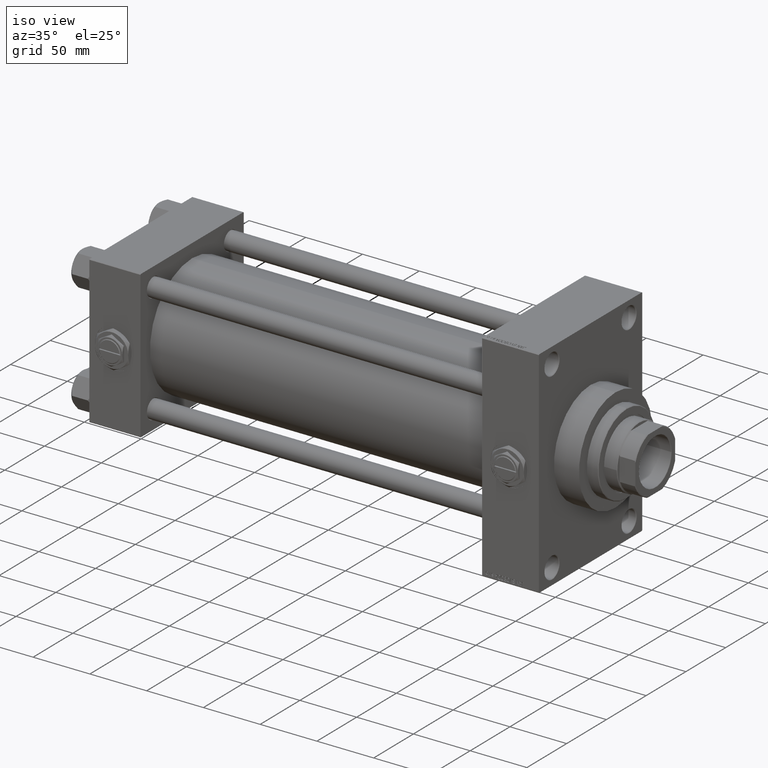
[diagram: clean part render]
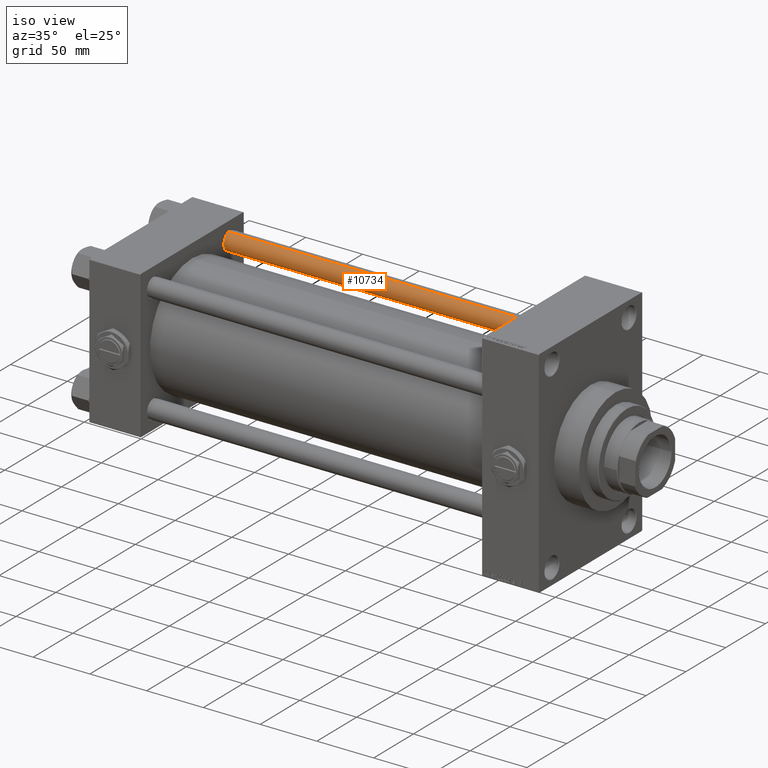
[diagram: same view with one face highlighted and labeled with its STEP entity id]
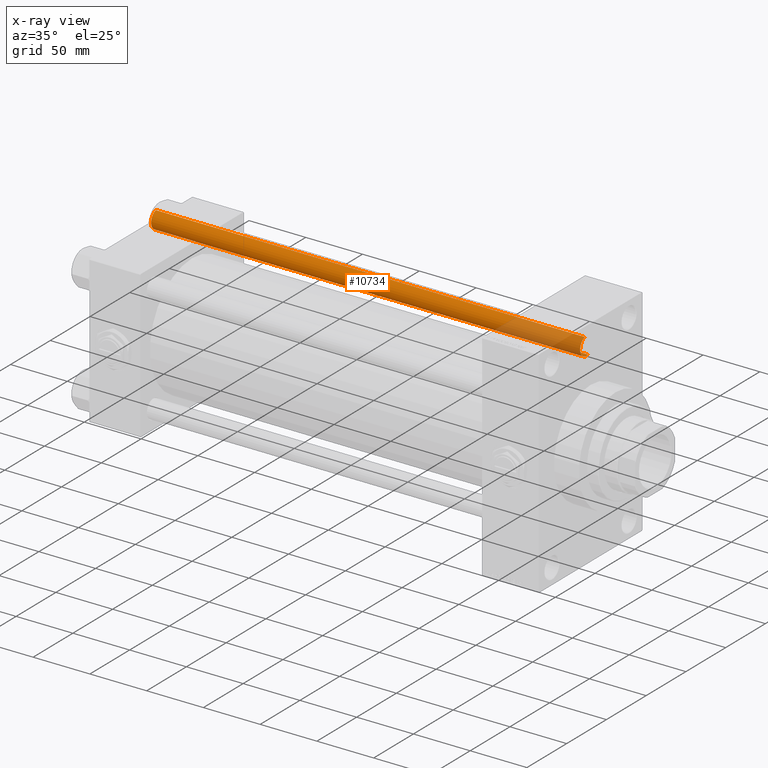
[diagram: x-ray of the same camera — body ghosted, the highlighted face saturated]
A machine part, iso view. The second image highlights one B-rep face of the part: STEP entity #10734.
The next image is the same camera in x-ray: the body ghosted, the highlighted face saturated — about 18% of this face is hidden behind the body in this view.
In plain terms, the highlighted cylindrical surface (edge-blend (fillet) strip) has radius 8 mm, axis along (-1, -0, 0).
Its self-contained STEP definition (entity closure, byte-faithful):
#559 = AXIS2_PLACEMENT_3D ( 'NONE', #12253, #12759, #8466 ) ;
#901 = FACE_OUTER_BOUND ( 'NONE', #17137, .T. ) ;
#3268 = VERTEX_POINT ( 'NONE', #49325 ) ;
#3337 = ORIENTED_EDGE ( 'NONE', *, *, #7220, .F. ) ;
#5632 = CARTESIAN_POINT ( 'NONE',  ( 8.000000000000000000, 9.797174393178825657E-16, 378.4999999999999432 ) ) ;
#6124 = AXIS2_PLACEMENT_3D ( 'NONE', #29737, #8271, #22674 ) ;
#7220 = EDGE_CURVE ( 'NONE', #16552, #27968, #7303, .T. ) ;
#7303 = LINE ( 'NONE', #19163, #33585 ) ;
#8271 = DIRECTION ( 'NONE',  ( 0.000000000000000000, 0.000000000000000000, -1.000000000000000000 ) ) ;
#8466 = DIRECTION ( 'NONE',  ( -1.000000000000000000, 0.000000000000000000, 0.000000000000000000 ) ) ;
#10570 = VERTEX_POINT ( 'NONE', #45822 ) ;
#10734 = ADVANCED_FACE ( 'NONE', ( #901 ), #16548, .T. ) ;
#11189 = ORIENTED_EDGE ( 'NONE', *, *, #49035, .T. ) ;
#12253 = CARTESIAN_POINT ( 'NONE',  ( 0.000000000000000000, 0.000000000000000000, 379.0000000000000000 ) ) ;
#12518 = ORIENTED_EDGE ( 'NONE', *, *, #43814, .T. ) ;
#12759 = DIRECTION ( 'NONE',  ( -0.000000000000000000, -0.000000000000000000, -1.000000000000000000 ) ) ;
#13435 = CIRCLE ( 'NONE', #47232, 8.000000000000000000 ) ;
#13964 = LINE ( 'NONE', #48510, #14945 ) ;
#14945 = VECTOR ( 'NONE', #29336, 1000.000000000000000 ) ;
#15767 = CIRCLE ( 'NONE', #6124, 8.000000000000000000 ) ;
#16548 = CYLINDRICAL_SURFACE ( 'NONE', #559, 8.000000000000000000 ) ;
#16552 = VERTEX_POINT ( 'NONE', #5632 ) ;
#17137 = EDGE_LOOP ( 'NONE', ( #3337, #12518, #31095, #11189 ) ) ;
#19163 = CARTESIAN_POINT ( 'NONE',  ( 8.000000000000000000, 9.797174393178825657E-16, 379.0000000000000000 ) ) ;
#22674 = DIRECTION ( 'NONE',  ( 1.000000000000000000, 0.000000000000000000, 0.000000000000000000 ) ) ;
#27968 = VERTEX_POINT ( 'NONE', #41893 ) ;
#29336 = DIRECTION ( 'NONE',  ( -0.000000000000000000, -0.000000000000000000, -1.000000000000000000 ) ) ;
#29737 = CARTESIAN_POINT ( 'NONE',  ( 0.000000000000000000, 0.000000000000000000, 378.4999999999999432 ) ) ;
#30500 = DIRECTION ( 'NONE',  ( -0.000000000000000000, -0.000000000000000000, -1.000000000000000000 ) ) ;
#31095 = ORIENTED_EDGE ( 'NONE', *, *, #42602, .T. ) ;
#33585 = VECTOR ( 'NONE', #30500, 1000.000000000000000 ) ;
#35341 = CARTESIAN_POINT ( 'NONE',  ( 0.000000000000000000, 0.000000000000000000, 0.4999999999998894218 ) ) ;
#41893 = CARTESIAN_POINT ( 'NONE',  ( 8.000000000000000000, 9.797174393178825657E-16, 0.4999999999998894218 ) ) ;
#42602 = EDGE_CURVE ( 'NONE', #10570, #3268, #13964, .T. ) ;
#42911 = DIRECTION ( 'NONE',  ( 1.000000000000000000, 0.000000000000000000, 0.000000000000000000 ) ) ;
#43814 = EDGE_CURVE ( 'NONE', #16552, #10570, #15767, .T. ) ;
#45822 = CARTESIAN_POINT ( 'NONE',  ( -8.000000000000000000, 0.000000000000000000, 378.4999999999999432 ) ) ;
#46686 = DIRECTION ( 'NONE',  ( -0.000000000000000000, -0.000000000000000000, 1.000000000000000000 ) ) ;
#47232 = AXIS2_PLACEMENT_3D ( 'NONE', #35341, #46686, #42911 ) ;
#48510 = CARTESIAN_POINT ( 'NONE',  ( -8.000000000000000000, 0.000000000000000000, 379.0000000000000000 ) ) ;
#49035 = EDGE_CURVE ( 'NONE', #3268, #27968, #13435, .T. ) ;
#49325 = CARTESIAN_POINT ( 'NONE',  ( -8.000000000000000000, 0.000000000000000000, 0.4999999999998894218 ) ) ;